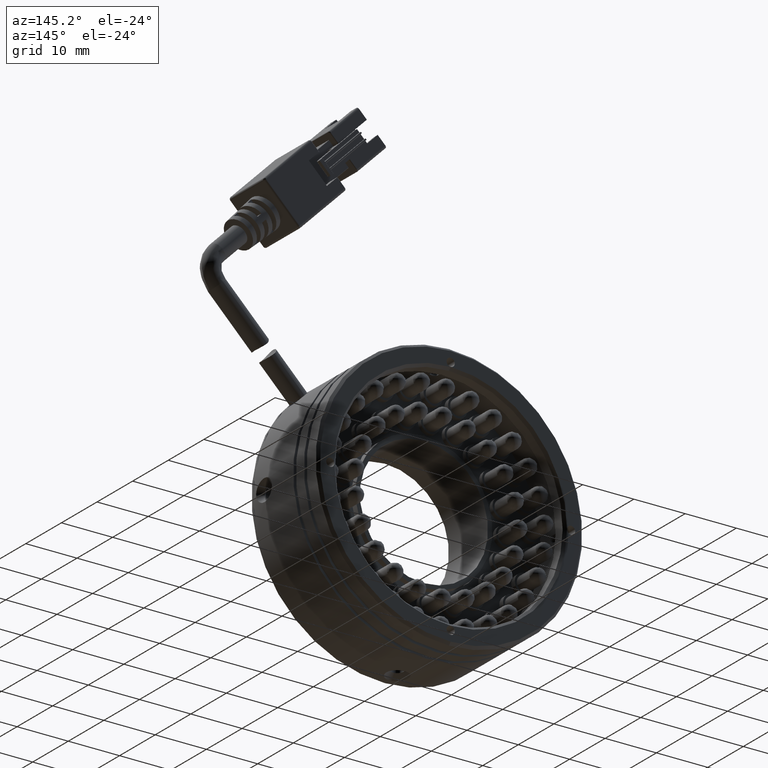
[diagram: clean part render]
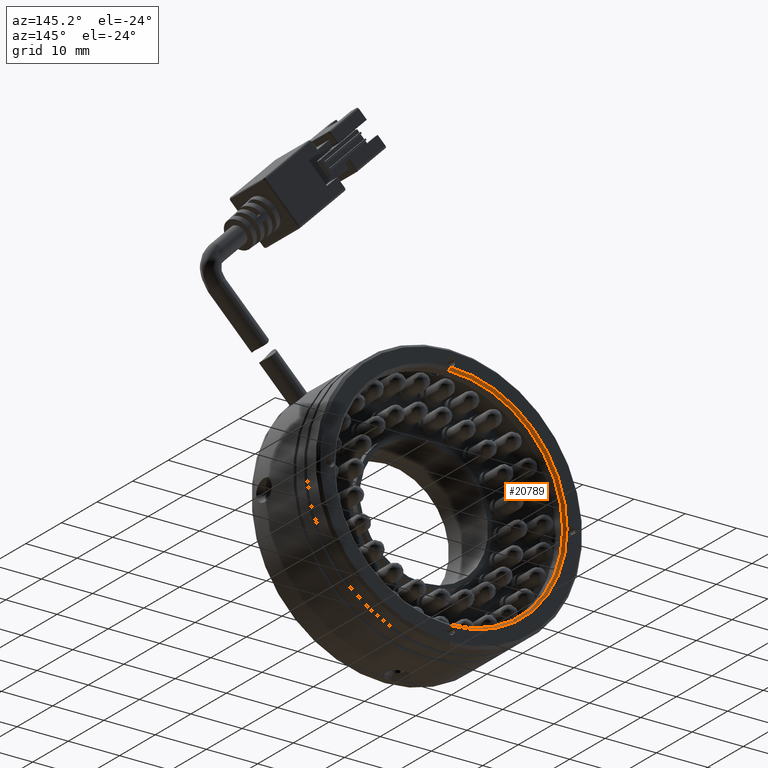
[diagram: same view with one face highlighted and labeled with its STEP entity id]
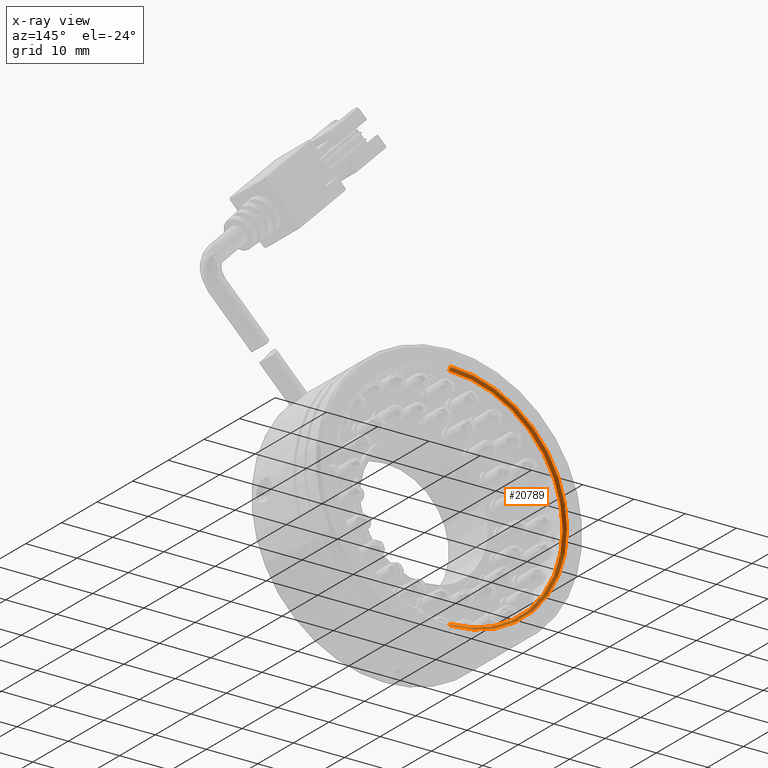
[diagram: x-ray of the same camera — body ghosted, the highlighted face saturated]
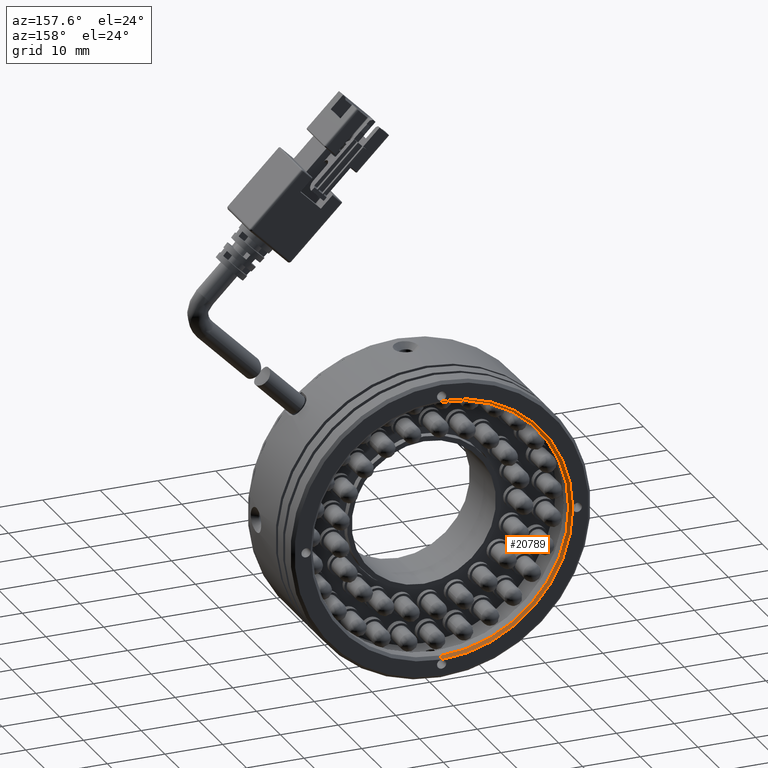
[diagram: same view with one face highlighted and labeled with its STEP entity id]
A machine part, auxiliary view. The second image highlights one B-rep face of the part: STEP entity #20789.
The next image is the same camera in x-ray: the body ghosted, the highlighted face saturated — about 0% of this face is hidden behind the body in this view.
A second angle (auxiliary view) of the same face is appended — the face is thin or edge-on in the first view.
In plain terms, the highlighted conical surface has half-angle 45 deg.
Its self-contained STEP definition (entity closure, byte-faithful):
#1233 = CARTESIAN_POINT ( 'NONE',  ( -0.8432364767453791600, 12.98007617023817800, 22.69999999999999900 ) ) ;
#1565 = EDGE_CURVE ( 'NONE', #2536, #27237, #7570, .T. ) ;
#2272 = VECTOR ( 'NONE', #30826, 1000.000000000000000 ) ;
#2509 = ORIENTED_EDGE ( 'NONE', *, *, #27672, .F. ) ;
#2536 = VERTEX_POINT ( 'NONE', #21174 ) ;
#2915 = AXIS2_PLACEMENT_3D ( 'NONE', #7733, #34054, #11566 ) ;
#3674 = CONICAL_SURFACE ( 'NONE', #15221, 22.69999999999999600, 0.7853981633974447300 ) ;
#4227 = EDGE_CURVE ( 'NONE', #19165, #22702, #18833, .T. ) ;
#5741 = EDGE_LOOP ( 'NONE', ( #38814, #45246, #35968, #47711, #2509 ) ) ;
#5807 = CARTESIAN_POINT ( 'NONE',  ( -23.54323647674537400, 12.98007617023817100, -8.203657462580361600E-014 ) ) ;
#7570 = CIRCLE ( 'NONE', #20370, 22.69999999999999600 ) ;
#7733 = CARTESIAN_POINT ( 'NONE',  ( -0.8432364767453765000, 12.98007617023817100, 0.0000000000000000000 ) ) ;
#8360 = FACE_OUTER_BOUND ( 'NONE', #5741, .T. ) ;
#10840 = DIRECTION ( 'NONE',  ( 0.0000000000000000000, 0.0000000000000000000, 1.000000000000000000 ) ) ;
#10998 = DIRECTION ( 'NONE',  ( 0.0000000000000000000, 1.000000000000000000, 0.0000000000000000000 ) ) ;
#11497 = CARTESIAN_POINT ( 'NONE',  ( -0.8432364767453765000, 12.98007617023817100, 0.0000000000000000000 ) ) ;
#11566 = DIRECTION ( 'NONE',  ( 0.0000000000000000000, 0.0000000000000000000, 1.000000000000000000 ) ) ;
#11921 = CIRCLE ( 'NONE', #2915, 22.69999999999999600 ) ;
#12107 = CARTESIAN_POINT ( 'NONE',  ( -0.8432364767453737200, 12.98007617023817100, -22.69999999999999600 ) ) ;
#15221 = AXIS2_PLACEMENT_3D ( 'NONE', #45797, #26630, #15773 ) ;
#15481 = VERTEX_POINT ( 'NONE', #1233 ) ;
#15773 = DIRECTION ( 'NONE',  ( 0.0000000000000000000, 0.0000000000000000000, 1.000000000000000000 ) ) ;
#17372 = AXIS2_PLACEMENT_3D ( 'NONE', #26919, #26821, #26627 ) ;
#17620 = EDGE_CURVE ( 'NONE', #19165, #2536, #22316, .T. ) ;
#18833 = CIRCLE ( 'NONE', #17372, 22.19999999999999600 ) ;
#19165 = VERTEX_POINT ( 'NONE', #33162 ) ;
#19907 = CARTESIAN_POINT ( 'NONE',  ( -0.8432364767453765000, 12.98007617023817100, 22.69999999999999600 ) ) ;
#20370 = AXIS2_PLACEMENT_3D ( 'NONE', #11497, #10998, #10840 ) ;
#20789 = ADVANCED_FACE ( 'NONE', ( #8360 ), #3674, .F. ) ;
#21174 = CARTESIAN_POINT ( 'NONE',  ( -0.8432364767453737200, 12.98007617023817100, -22.69999999999999600 ) ) ;
#22316 = LINE ( 'NONE', #12107, #2272 ) ;
#22702 = VERTEX_POINT ( 'NONE', #30875 ) ;
#23924 = VECTOR ( 'NONE', #38866, 1000.000000000000000 ) ;
#25138 = LINE ( 'NONE', #19907, #23924 ) ;
#26627 = DIRECTION ( 'NONE',  ( 0.0000000000000000000, 0.0000000000000000000, 1.000000000000000000 ) ) ;
#26630 = DIRECTION ( 'NONE',  ( 0.0000000000000000000, 1.000000000000000000, 0.0000000000000000000 ) ) ;
#26821 = DIRECTION ( 'NONE',  ( -0.0000000000000000000, 1.000000000000000000, -0.0000000000000000000 ) ) ;
#26919 = CARTESIAN_POINT ( 'NONE',  ( -0.8432364767453765000, 12.48007617023817100, 0.0000000000000000000 ) ) ;
#27237 = VERTEX_POINT ( 'NONE', #5807 ) ;
#27672 = EDGE_CURVE ( 'NONE', #22702, #15481, #25138, .T. ) ;
#30826 = DIRECTION ( 'NONE',  ( 8.659560562354902000E-017, 0.7071067811865500200, -0.7071067811865450200 ) ) ;
#30875 = CARTESIAN_POINT ( 'NONE',  ( -0.8432364767453738300, 12.48007617023817100, 22.19999999999999600 ) ) ;
#33162 = CARTESIAN_POINT ( 'NONE',  ( -0.8432364767453765000, 12.48007617023817100, -22.19999999999999600 ) ) ;
#34054 = DIRECTION ( 'NONE',  ( 0.0000000000000000000, 1.000000000000000000, 0.0000000000000000000 ) ) ;
#35968 = ORIENTED_EDGE ( 'NONE', *, *, #1565, .T. ) ;
#38814 = ORIENTED_EDGE ( 'NONE', *, *, #4227, .F. ) ;
#38866 = DIRECTION ( 'NONE',  ( 0.0000000000000000000, 0.7071067811865500200, 0.7071067811865450200 ) ) ;
#43140 = EDGE_CURVE ( 'NONE', #27237, #15481, #11921, .T. ) ;
#45246 = ORIENTED_EDGE ( 'NONE', *, *, #17620, .T. ) ;
#45797 = CARTESIAN_POINT ( 'NONE',  ( -0.8432364767453765000, 12.98007617023817100, 0.0000000000000000000 ) ) ;
#47711 = ORIENTED_EDGE ( 'NONE', *, *, #43140, .T. ) ;